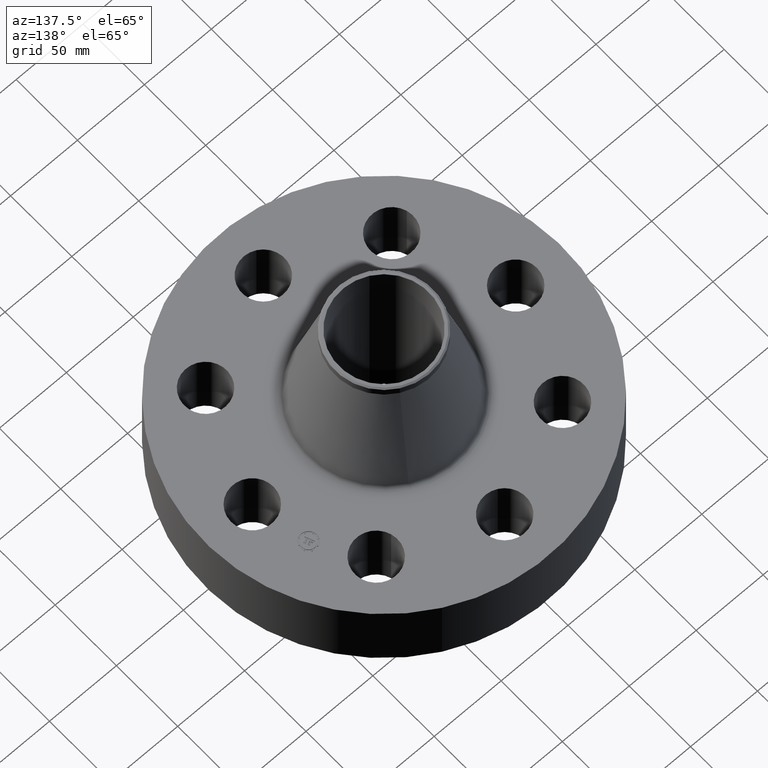
[diagram: clean part render]
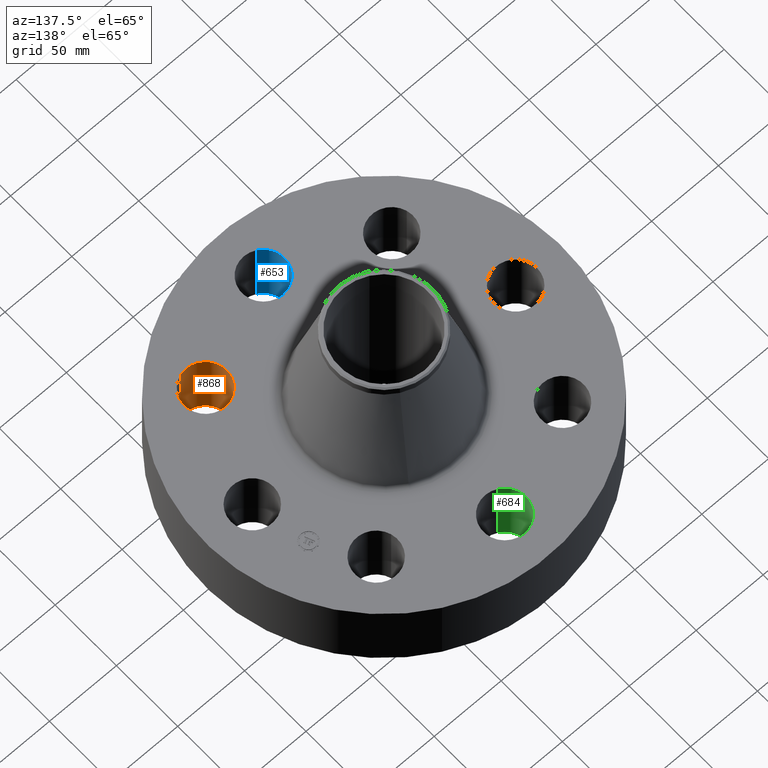
[diagram: same view with three faces highlighted in distinct colors, each labeled with its STEP entity id]
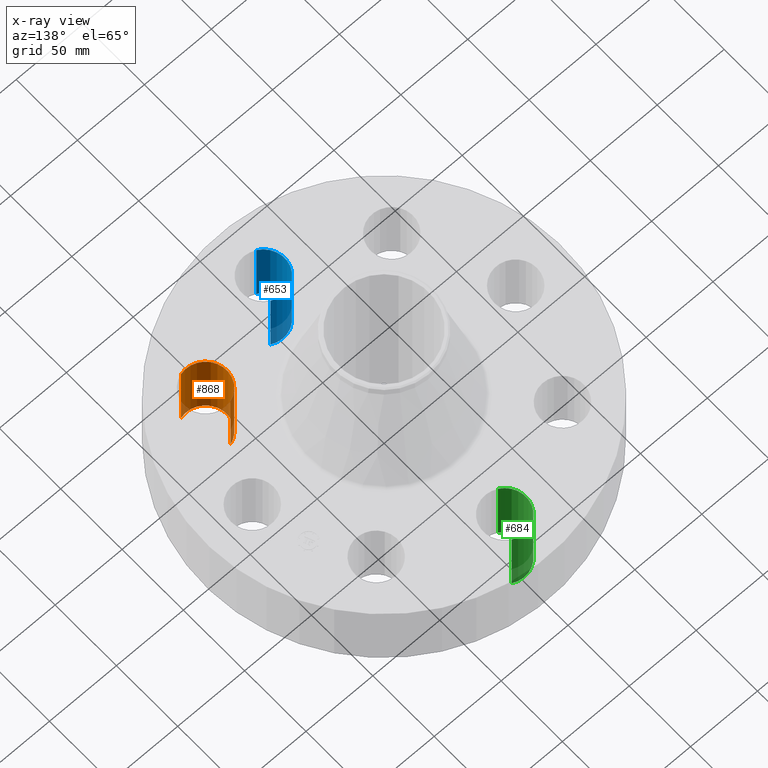
[diagram: x-ray of the same camera — body ghosted, the three highlighted faces saturated]
A machine part, auxiliary view with three faces highlighted in distinct colors.
The next image is the same camera in x-ray (body ghosted, the three faces saturated) — at least one of them is partly hidden behind the body in this view.
Their STEP definitions:

[orange] entity #868 — the highlighted cylindrical surface (edge-blend (fillet) strip) has radius 15.875 mm, axis along (0, -0, -1).
#452=AXIS2_PLACEMENT_3D('Circle Axis2P3D',#450,#451,$) ;
#829=AXIS2_PLACEMENT_3D('Cylinder Axis2P3D',#826,#827,#828) ;
#859=AXIS2_PLACEMENT_3D('Circle Axis2P3D',#857,#858,$) ;
#445=CARTESIAN_POINT('Vertex',(2.56407657014,-2.14032025837,0.)) ;
#447=CARTESIAN_POINT('Vertex',(2.91600098407,-3.33975729585,-2.79741234551E-016)) ;
#450=CARTESIAN_POINT('Axis2P3D Location',(2.74003877711,-2.74003877711,0.)) ;
#826=CARTESIAN_POINT('Axis2P3D Location',(2.74003877711,-2.74003877711,2.24606299213)) ;
#831=CARTESIAN_POINT('Line Origine',(2.56407657014,-2.14032025837,1.125)) ;
#835=CARTESIAN_POINT('Vertex',(2.56407657014,-2.14032025837,2.25000000001)) ;
#838=CARTESIAN_POINT('Line Origine',(2.91600098407,-3.33975729585,1.125)) ;
#842=CARTESIAN_POINT('Vertex',(2.91600098407,-3.33975729585,2.25000000001)) ;
#857=CARTESIAN_POINT('Axis2P3D Location',(2.74003877711,-2.74003877711,2.25000000001)) ;
#451=DIRECTION('Axis2P3D Direction',(0.,0.,-0.0393700787402)) ;
#827=DIRECTION('Axis2P3D Direction',(0.,-0.,-0.0393700787402)) ;
#828=DIRECTION('Axis2P3D XDirection',(0.0110842335096,-0.0377775444876,0.)) ;
#832=DIRECTION('Vector Direction',(0.,0.,-0.0393700787402)) ;
#839=DIRECTION('Vector Direction',(0.,0.,-0.0393700787402)) ;
#858=DIRECTION('Axis2P3D Direction',(0.,-0.,-0.0393700787402)) ;
#833=VECTOR('Line Direction',#832,0.0393700787402) ;
#840=VECTOR('Line Direction',#839,0.0393700787402) ;
#863=ORIENTED_EDGE('',*,*,#844,.F.) ;
#864=ORIENTED_EDGE('',*,*,#454,.T.) ;
#865=ORIENTED_EDGE('',*,*,#837,.T.) ;
#866=ORIENTED_EDGE('',*,*,#861,.F.) ;
#868=ADVANCED_FACE('PartBody',(#867),#830,.F.) ;
#453=CIRCLE('generated circle',#452,0.625000000002) ;
#860=CIRCLE('generated circle',#859,0.625000000002) ;
#830=CYLINDRICAL_SURFACE('generated cylinder',#829,0.625000000002) ;
#454=EDGE_CURVE('',#448,#446,#453,.T.) ;
#837=EDGE_CURVE('',#446,#836,#834,.F.) ;
#844=EDGE_CURVE('',#448,#843,#841,.F.) ;
#861=EDGE_CURVE('',#843,#836,#860,.T.) ;
#862=EDGE_LOOP('',(#863,#864,#865,#866)) ;
#867=FACE_OUTER_BOUND('',#862,.T.) ;
#834=LINE('Line',#831,#833) ;
#841=LINE('Line',#838,#840) ;
#446=VERTEX_POINT('',#445) ;
#448=VERTEX_POINT('',#447) ;
#836=VERTEX_POINT('',#835) ;
#843=VERTEX_POINT('',#842) ;

[blue] entity #653 — the highlighted cylindrical surface (edge-blend (fillet) strip) has radius 15.875 mm, axis along (0, -0, -1).
#470=AXIS2_PLACEMENT_3D('Circle Axis2P3D',#468,#469,$) ;
#614=AXIS2_PLACEMENT_3D('Cylinder Axis2P3D',#611,#612,#613) ;
#644=AXIS2_PLACEMENT_3D('Circle Axis2P3D',#642,#643,$) ;
#463=CARTESIAN_POINT('Vertex',(0.299640961629,-3.32651089883,0.)) ;
#465=CARTESIAN_POINT('Vertex',(-0.299640961629,-4.4234891012,-2.79741234551E-016)) ;
#468=CARTESIAN_POINT('Axis2P3D Location',(4.19611851827E-016,-3.87500000002,0.)) ;
#611=CARTESIAN_POINT('Axis2P3D Location',(2.37275317336E-016,-3.87500000002,2.24606299213)) ;
#616=CARTESIAN_POINT('Line Origine',(0.299640961629,-3.32651089883,1.125)) ;
#620=CARTESIAN_POINT('Vertex',(0.299640961629,-3.32651089883,2.25000000001)) ;
#623=CARTESIAN_POINT('Line Origine',(-0.299640961629,-4.4234891012,1.125)) ;
#627=CARTESIAN_POINT('Vertex',(-0.299640961629,-4.4234891012,2.25000000001)) ;
#642=CARTESIAN_POINT('Axis2P3D Location',(2.37275317336E-016,-3.87500000002,2.25000000001)) ;
#469=DIRECTION('Axis2P3D Direction',(0.,0.,-0.0393700787402)) ;
#612=DIRECTION('Axis2P3D Direction',(0.,-0.,-0.0393700787402)) ;
#613=DIRECTION('Axis2P3D XDirection',(-0.0188750212049,-0.0345504945626,0.)) ;
#617=DIRECTION('Vector Direction',(0.,0.,-0.0393700787402)) ;
#624=DIRECTION('Vector Direction',(0.,0.,-0.0393700787402)) ;
#643=DIRECTION('Axis2P3D Direction',(0.,-0.,-0.0393700787402)) ;
#618=VECTOR('Line Direction',#617,0.0393700787402) ;
#625=VECTOR('Line Direction',#624,0.0393700787402) ;
#648=ORIENTED_EDGE('',*,*,#629,.F.) ;
#649=ORIENTED_EDGE('',*,*,#472,.T.) ;
#650=ORIENTED_EDGE('',*,*,#622,.T.) ;
#651=ORIENTED_EDGE('',*,*,#646,.F.) ;
#653=ADVANCED_FACE('PartBody',(#652),#615,.F.) ;
#471=CIRCLE('generated circle',#470,0.625000000002) ;
#645=CIRCLE('generated circle',#644,0.625000000002) ;
#615=CYLINDRICAL_SURFACE('generated cylinder',#614,0.625000000002) ;
#472=EDGE_CURVE('',#466,#464,#471,.T.) ;
#622=EDGE_CURVE('',#464,#621,#619,.F.) ;
#629=EDGE_CURVE('',#466,#628,#626,.F.) ;
#646=EDGE_CURVE('',#628,#621,#645,.T.) ;
#647=EDGE_LOOP('',(#648,#649,#650,#651)) ;
#652=FACE_OUTER_BOUND('',#647,.T.) ;
#619=LINE('Line',#616,#618) ;
#626=LINE('Line',#623,#625) ;
#464=VERTEX_POINT('',#463) ;
#466=VERTEX_POINT('',#465) ;
#621=VERTEX_POINT('',#620) ;
#628=VERTEX_POINT('',#627) ;

[green] entity #684 — the highlighted cylindrical surface (edge-blend (fillet) strip) has radius 15.875 mm, axis along (0, 0, -1).
#533=AXIS2_PLACEMENT_3D('Circle Axis2P3D',#531,#532,$) ;
#657=AXIS2_PLACEMENT_3D('Cylinder Axis2P3D',#654,#655,#656) ;
#675=AXIS2_PLACEMENT_3D('Circle Axis2P3D',#673,#674,$) ;
#531=CARTESIAN_POINT('Axis2P3D Location',(-1.39870617276E-016,3.87500000002,0.)) ;
#535=CARTESIAN_POINT('Vertex',(-0.299640961629,3.32651089883,0.)) ;
#537=CARTESIAN_POINT('Vertex',(0.299640961629,4.4234891012,-2.79741234551E-016)) ;
#654=CARTESIAN_POINT('Axis2P3D Location',(-1.52343482905E-016,3.87500000002,2.24606299213)) ;
#659=CARTESIAN_POINT('Line Origine',(-0.299640961629,3.32651089883,1.125)) ;
#663=CARTESIAN_POINT('Vertex',(-0.299640961629,3.32651089883,2.25000000001)) ;
#666=CARTESIAN_POINT('Line Origine',(0.299640961629,4.4234891012,1.125)) ;
#670=CARTESIAN_POINT('Vertex',(0.299640961629,4.4234891012,2.25000000001)) ;
#673=CARTESIAN_POINT('Axis2P3D Location',(-1.52343482905E-016,3.87500000002,2.25000000001)) ;
#532=DIRECTION('Axis2P3D Direction',(0.,0.,-0.0393700787402)) ;
#655=DIRECTION('Axis2P3D Direction',(0.,0.,-0.0393700787402)) ;
#656=DIRECTION('Axis2P3D XDirection',(0.0188750212049,0.0345504945626,0.)) ;
#660=DIRECTION('Vector Direction',(0.,0.,-0.0393700787402)) ;
#667=DIRECTION('Vector Direction',(0.,0.,-0.0393700787402)) ;
#674=DIRECTION('Axis2P3D Direction',(0.,0.,-0.0393700787402)) ;
#661=VECTOR('Line Direction',#660,0.0393700787402) ;
#668=VECTOR('Line Direction',#667,0.0393700787402) ;
#679=ORIENTED_EDGE('',*,*,#665,.F.) ;
#680=ORIENTED_EDGE('',*,*,#539,.T.) ;
#681=ORIENTED_EDGE('',*,*,#672,.T.) ;
#682=ORIENTED_EDGE('',*,*,#677,.F.) ;
#684=ADVANCED_FACE('PartBody',(#683),#658,.F.) ;
#534=CIRCLE('generated circle',#533,0.625000000002) ;
#676=CIRCLE('generated circle',#675,0.625000000002) ;
#658=CYLINDRICAL_SURFACE('generated cylinder',#657,0.625000000002) ;
#539=EDGE_CURVE('',#536,#538,#534,.T.) ;
#665=EDGE_CURVE('',#536,#664,#662,.F.) ;
#672=EDGE_CURVE('',#538,#671,#669,.F.) ;
#677=EDGE_CURVE('',#664,#671,#676,.T.) ;
#678=EDGE_LOOP('',(#679,#680,#681,#682)) ;
#683=FACE_OUTER_BOUND('',#678,.T.) ;
#662=LINE('Line',#659,#661) ;
#669=LINE('Line',#666,#668) ;
#536=VERTEX_POINT('',#535) ;
#538=VERTEX_POINT('',#537) ;
#664=VERTEX_POINT('',#663) ;
#671=VERTEX_POINT('',#670) ;